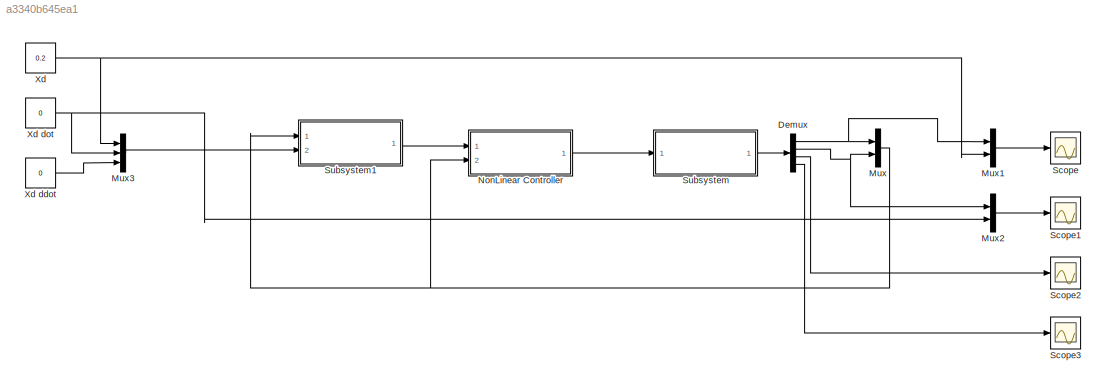
MODEL slx_a3340b645ea1
KIND model
CONFIG AbsTol = auto
CONFIG EnableMultiTasking = off
CONFIG FixedStep = auto
CONFIG MaxStep = auto
CONFIG MinStep = auto
CONFIG RelTol = 1e-3
CONFIG SampleTimeConstraint = Unconstrained
CONFIG Solver = VariableStepAuto
CONFIG SolverName = VariableStepAuto
CONFIG StartTime = 0.0
CONFIG StopTime = 10.0
BLOCK [Demux] Demux
  DisplayOption = bar
  Ports = [1, 4]
BLOCK [Mux] Mux
  DisplayOption = bar
  Inputs = 2
  Ports = [2, 1]
BLOCK [Mux] Mux1
  DisplayOption = bar
  Inputs = 2
  Ports = [2, 1]
BLOCK [Mux] Mux2
  DisplayOption = bar
  Inputs = 2
  Ports = [2, 1]
BLOCK [Mux] Mux3
  DisplayOption = bar
  Inputs = 3
  Ports = [3, 1]
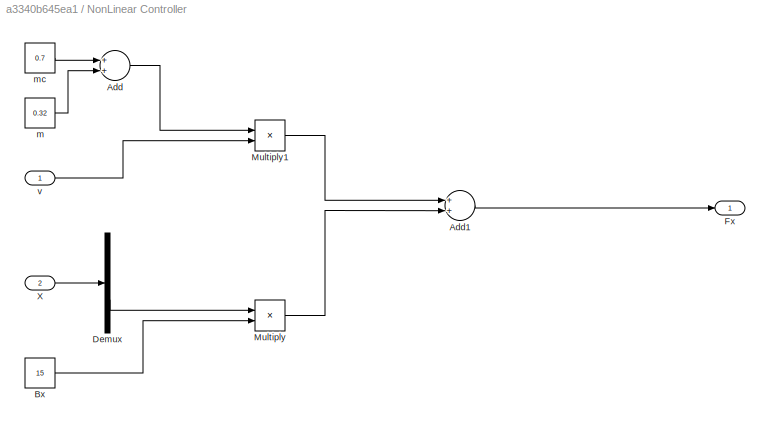
BLOCK [SubSystem] NonLinear Controller
  Ports = [2, 1]
  RequestExecContextInheritance = off
BLOCK [Sum] NonLinear Controller/Add
  InputSameDT = off
  OutDataTypeStr = Inherit: Inherit via internal rule
  Ports = [2, 1]
  SaturateOnIntegerOverflow = off
BLOCK [Sum] NonLinear Controller/Add1
  InputSameDT = off
  OutDataTypeStr = Inherit: Inherit via internal rule
  Ports = [2, 1]
  SaturateOnIntegerOverflow = off
BLOCK [Constant] NonLinear Controller/Bx
  Value = 15
BLOCK [Demux] NonLinear Controller/Demux
  DisplayOption = bar
  Outputs = 2
  Ports = [1, 2]
BLOCK [Outport] NonLinear Controller/Fx
  IconDisplay = Port number
BLOCK [Product] NonLinear Controller/Multiply
  InputSameDT = off
  OutDataTypeStr = Inherit: Inherit via internal rule
  Ports = [2, 1]
  RndMeth = Floor
  SaturateOnIntegerOverflow = off
BLOCK [Product] NonLinear Controller/Multiply1
  InputSameDT = off
  OutDataTypeStr = Inherit: Inherit via internal rule
  Ports = [2, 1]
  RndMeth = Floor
  SaturateOnIntegerOverflow = off
BLOCK [Inport] NonLinear Controller/X
  IconDisplay = Port number
  Port = 2
BLOCK [Constant] NonLinear Controller/m
  Value = 0.32
BLOCK [Constant] NonLinear Controller/mc
  Value = 0.7
BLOCK [Inport] NonLinear Controller/v
  IconDisplay = Port number
BLOCK [Scope] Scope
  Floating = off
  NumInputPorts = 1
  Ports = [1]
  ScopeSpecificationString = Simulink.scopes.TimeScopeBlockCfg('CurrentConfiguration', extmgr.ConfigurationSet(extmgr.Configuration('Core','General UI',true),extmgr.Configuration('Core','Source UI',true),extmgr.Configuration('Sources','WiredSimulink',true),extmgr.Configuration('Visuals','Time Domain',true),extmgr.Configuration('Tools','Plot Navigation',true),extmgr.Configuration('Tools','Measurements',true)),'Version','2018a'...<+1ch>
BLOCK [Scope] Scope1
  Floating = off
  NumInputPorts = 1
  Ports = [1]
  ScopeSpecificationString = Simulink.scopes.TimeScopeBlockCfg('CurrentConfiguration', extmgr.ConfigurationSet(extmgr.Configuration('Core','General UI',true),extmgr.Configuration('Core','Source UI',true),extmgr.Configuration('Sources','WiredSimulink',true,'DataLoggingVariableName','ScopeData1'),extmgr.Configuration('Visuals','Time Domain',true),extmgr.Configuration('Tools','Plot Navigation',true),extmgr.Configuration('Tools',...<+40ch>
BLOCK [Scope] Scope2
  Floating = off
  NumInputPorts = 1
  Ports = [1]
  ScopeSpecificationString = Simulink.scopes.TimeScopeBlockCfg('CurrentConfiguration', extmgr.ConfigurationSet(extmgr.Configuration('Core','General UI',true),extmgr.Configuration('Core','Source UI',true),extmgr.Configuration('Sources','WiredSimulink',true,'DataLoggingVariableName','ScopeData2'),extmgr.Configuration('Visuals','Time Domain',true),extmgr.Configuration('Tools','Plot Navigation',true),extmgr.Configuration('Tools',...<+40ch>
BLOCK [Scope] Scope3
  Floating = off
  NumInputPorts = 1
  Ports = [1]
  ScopeSpecificationString = Simulink.scopes.TimeScopeBlockCfg('CurrentConfiguration', extmgr.ConfigurationSet(extmgr.Configuration('Core','General UI',true),extmgr.Configuration('Core','Source UI',true),extmgr.Configuration('Sources','WiredSimulink',true,'DataLoggingVariableName','ScopeData3'),extmgr.Configuration('Visuals','Time Domain',true),extmgr.Configuration('Tools','Plot Navigation',true),extmgr.Configuration('Tools',...<+40ch>
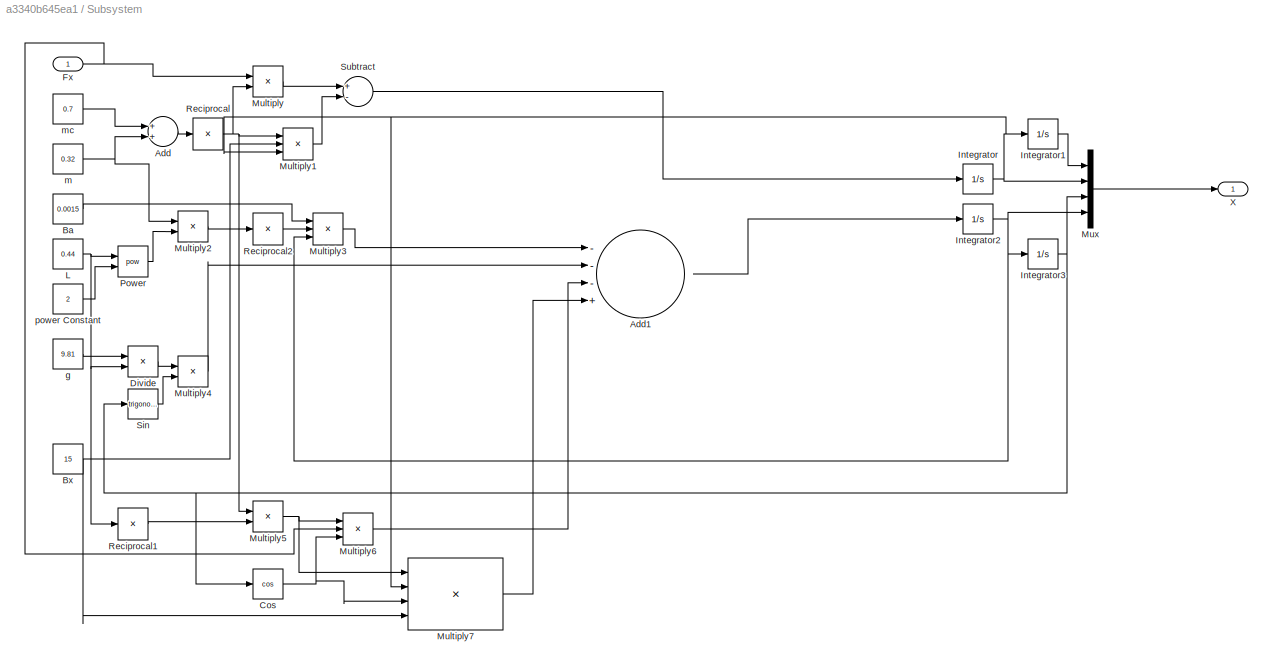
BLOCK [SubSystem] Subsystem
  Ports = [1, 1]
  RequestExecContextInheritance = off
BLOCK [Sum] Subsystem/Add
  InputSameDT = off
  OutDataTypeStr = Inherit: Inherit via internal rule
  Ports = [2, 1]
  SaturateOnIntegerOverflow = off
BLOCK [Sum] Subsystem/Add1
  InputSameDT = off
  Inputs = ---+
  OutDataTypeStr = Inherit: Inherit via internal rule
  Ports = [4, 1]
  SaturateOnIntegerOverflow = off
BLOCK [Constant] Subsystem/Ba
  Value = 0.0015
BLOCK [Constant] Subsystem/Bx
  Value = 15
BLOCK [Trigonometry] Subsystem/Cos
  Operator = cos
  Ports = [1, 1]
BLOCK [Product] Subsystem/Divide
  InputSameDT = off
  Inputs = */
  OutDataTypeStr = Inherit: Inherit via internal rule
  Ports = [2, 1]
  RndMeth = Floor
  SaturateOnIntegerOverflow = off
BLOCK [Inport] Subsystem/Fx
  IconDisplay = Port number
BLOCK [Integrator] Subsystem/Integrator
  Ports = [1, 1]
BLOCK [Integrator] Subsystem/Integrator1
  Ports = [1, 1]
BLOCK [Integrator] Subsystem/Integrator2
  Ports = [1, 1]
BLOCK [Integrator] Subsystem/Integrator3
  Ports = [1, 1]
BLOCK [Constant] Subsystem/L
  Value = 0.44
BLOCK [Product] Subsystem/Multiply
  InputSameDT = off
  OutDataTypeStr = Inherit: Inherit via internal rule
  Ports = [2, 1]
  RndMeth = Floor
  SaturateOnIntegerOverflow = off
BLOCK [Product] Subsystem/Multiply1
  InputSameDT = off
  Inputs = 3
  OutDataTypeStr = Inherit: Inherit via internal rule
  Ports = [3, 1]
  RndMeth = Floor
  SaturateOnIntegerOverflow = off
BLOCK [Product] Subsystem/Multiply2
  InputSameDT = off
  OutDataTypeStr = Inherit: Inherit via internal rule
  Ports = [2, 1]
  RndMeth = Floor
  SaturateOnIntegerOverflow = off
BLOCK [Product] Subsystem/Multiply3
  InputSameDT = off
  Inputs = 3
  OutDataTypeStr = Inherit: Inherit via internal rule
  Ports = [3, 1]
  RndMeth = Floor
  SaturateOnIntegerOverflow = off
BLOCK [Product] Subsystem/Multiply4
  InputSameDT = off
  OutDataTypeStr = Inherit: Inherit via internal rule
  Ports = [2, 1]
  RndMeth = Floor
  SaturateOnIntegerOverflow = off
BLOCK [Product] Subsystem/Multiply5
  InputSameDT = off
  OutDataTypeStr = Inherit: Inherit via internal rule
  Ports = [2, 1]
  RndMeth = Floor
  SaturateOnIntegerOverflow = off
BLOCK [Product] Subsystem/Multiply6
  InputSameDT = off
  Inputs = 3
  OutDataTypeStr = Inherit: Inherit via internal rule
  Ports = [3, 1]
  RndMeth = Floor
  SaturateOnIntegerOverflow = off
BLOCK [Product] Subsystem/Multiply7
  InputSameDT = off
  Inputs = 4
  OutDataTypeStr = Inherit: Inherit via internal rule
  Ports = [4, 1]
  RndMeth = Floor
  SaturateOnIntegerOverflow = off
BLOCK [Mux] Subsystem/Mux
  DisplayOption = bar
  Ports = [4, 1]
BLOCK [Math] Subsystem/Power
  Operator = pow
  Ports = [2, 1]
BLOCK [Product] Subsystem/Reciprocal
  InputSameDT = off
  Inputs = /
  OutDataTypeStr = Inherit: Inherit via internal rule
  Ports = [1, 1]
  RndMeth = Floor
  SaturateOnIntegerOverflow = off
BLOCK [Product] Subsystem/Reciprocal1
  InputSameDT = off
  Inputs = /
  OutDataTypeStr = Inherit: Inherit via internal rule
  Ports = [1, 1]
  RndMeth = Floor
  SaturateOnIntegerOverflow = off
BLOCK [Product] Subsystem/Reciprocal2
  InputSameDT = off
  Inputs = /
  OutDataTypeStr = Inherit: Inherit via internal rule
  Ports = [1, 1]
  RndMeth = Floor
  SaturateOnIntegerOverflow = off
BLOCK [Trigonometry] Subsystem/Sin
  Ports = [1, 1]
BLOCK [Sum] Subsystem/Subtract
  InputSameDT = off
  Inputs = +-
  OutDataTypeStr = Inherit: Inherit via internal rule
  Ports = [2, 1]
  SaturateOnIntegerOverflow = off
BLOCK [Outport] Subsystem/X
  IconDisplay = Port number
BLOCK [Constant] Subsystem/g
  Value = 9.81
BLOCK [Constant] Subsystem/m
  Value = 0.32
BLOCK [Constant] Subsystem/mc
  Value = 0.7
BLOCK [Constant] Subsystem/power Constant
  Value = 2
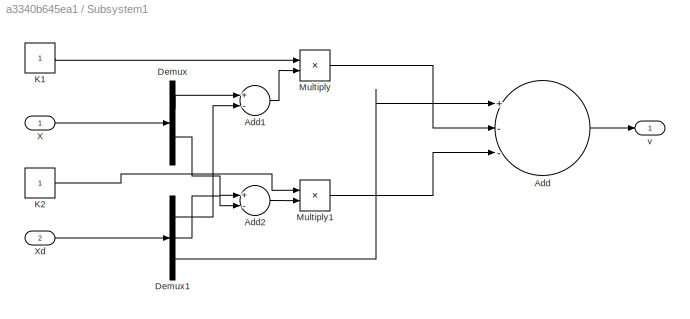
BLOCK [SubSystem] Subsystem1
  Ports = [2, 1]
  RequestExecContextInheritance = off
BLOCK [Sum] Subsystem1/Add
  InputSameDT = off
  Inputs = +--
  OutDataTypeStr = Inherit: Inherit via internal rule
  Ports = [3, 1]
  SaturateOnIntegerOverflow = off
BLOCK [Sum] Subsystem1/Add1
  InputSameDT = off
  Inputs = +-
  OutDataTypeStr = Inherit: Inherit via internal rule
  Ports = [2, 1]
  SaturateOnIntegerOverflow = off
BLOCK [Sum] Subsystem1/Add2
  InputSameDT = off
  Inputs = +-
  OutDataTypeStr = Inherit: Inherit via internal rule
  Ports = [2, 1]
  SaturateOnIntegerOverflow = off
BLOCK [Demux] Subsystem1/Demux
  DisplayOption = bar
  Outputs = 2
  Ports = [1, 2]
BLOCK [Demux] Subsystem1/Demux1
  DisplayOption = bar
  Outputs = 3
  Ports = [1, 3]
BLOCK [Constant] Subsystem1/K1
BLOCK [Constant] Subsystem1/K2
BLOCK [Product] Subsystem1/Multiply
  InputSameDT = off
  OutDataTypeStr = Inherit: Inherit via internal rule
  Ports = [2, 1]
  RndMeth = Floor
  SaturateOnIntegerOverflow = off
BLOCK [Product] Subsystem1/Multiply1
  InputSameDT = off
  OutDataTypeStr = Inherit: Inherit via internal rule
  Ports = [2, 1]
  RndMeth = Floor
  SaturateOnIntegerOverflow = off
BLOCK [Inport] Subsystem1/X
  IconDisplay = Port number
BLOCK [Inport] Subsystem1/Xd
  IconDisplay = Port number
  Port = 2
BLOCK [Outport] Subsystem1/v
  IconDisplay = Port number
BLOCK [Constant] Xd
  Value = 0.2
BLOCK [Constant] Xd ddot
  Value = 0
BLOCK [Constant] Xd dot
  Value = 0
NET Demux:1 -> Mux1:1, Mux:1
NET Demux:2 -> Mux2:1, Mux:2
LINE Demux:3 -> Scope2:1
LINE Demux:4 -> Scope3:1
LINE Mux1:1 -> Scope:1
LINE Mux2:1 -> Scope1:1
LINE Mux3:1 -> Subsystem1:2
NET Mux:1 -> NonLinear Controller:2, Subsystem1:1
LINE NonLinear Controller/Add1:1 -> NonLinear Controller/Fx:1
LINE NonLinear Controller/Add:1 -> NonLinear Controller/Multiply1:1
LINE NonLinear Controller/Bx:1 -> NonLinear Controller/Multiply:2
LINE NonLinear Controller/Demux:2 -> NonLinear Controller/Multiply:1
LINE NonLinear Controller/Multiply1:1 -> NonLinear Controller/Add1:1
LINE NonLinear Controller/Multiply:1 -> NonLinear Controller/Add1:2
LINE NonLinear Controller/X:1 -> NonLinear Controller/Demux:1
LINE NonLinear Controller/m:1 -> NonLinear Controller/Add:2
LINE NonLinear Controller/mc:1 -> NonLinear Controller/Add:1
LINE NonLinear Controller/v:1 -> NonLinear Controller/Multiply1:2
LINE NonLinear Controller:1 -> Subsystem:1
LINE Subsystem/Add1:1 -> Subsystem/Integrator2:1
LINE Subsystem/Add:1 -> Subsystem/Reciprocal:1
LINE Subsystem/Ba:1 -> Subsystem/Multiply3:1
NET Subsystem/Bx:1 -> Subsystem/Multiply1:2, Subsystem/Multiply7:4
NET Subsystem/Cos:1 -> Subsystem/Multiply6:3, Subsystem/Multiply7:3
LINE Subsystem/Divide:1 -> Subsystem/Multiply4:1
NET Subsystem/Fx:1 -> Subsystem/Multiply6:2, Subsystem/Multiply:1
LINE Subsystem/Integrator1:1 -> Subsystem/Mux:1
NET Subsystem/Integrator2:1 -> Subsystem/Integrator3:1, Subsystem/Multiply3:3, Subsystem/Mux:4
NET Subsystem/Integrator3:1 -> Subsystem/Cos:1, Subsystem/Mux:3, Subsystem/Sin:1
NET Subsystem/Integrator:1 -> Subsystem/Integrator1:1, Subsystem/Multiply1:3, Subsystem/Multiply7:2, Subsystem/Mux:2
NET Subsystem/L:1 -> Subsystem/Divide:2, Subsystem/Power:1, Subsystem/Reciprocal1:1
LINE Subsystem/Multiply1:1 -> Subsystem/Subtract:2
LINE Subsystem/Multiply2:1 -> Subsystem/Reciprocal2:1
LINE Subsystem/Multiply3:1 -> Subsystem/Add1:1
LINE Subsystem/Multiply4:1 -> Subsystem/Add1:2
NET Subsystem/Multiply5:1 -> Subsystem/Multiply6:1, Subsystem/Multiply7:1
LINE Subsystem/Multiply6:1 -> Subsystem/Add1:3
LINE Subsystem/Multiply7:1 -> Subsystem/Add1:4
LINE Subsystem/Multiply:1 -> Subsystem/Subtract:1
LINE Subsystem/Mux:1 -> Subsystem/X:1
LINE Subsystem/Power:1 -> Subsystem/Multiply2:2
LINE Subsystem/Reciprocal1:1 -> Subsystem/Multiply5:2
LINE Subsystem/Reciprocal2:1 -> Subsystem/Multiply3:2
NET Subsystem/Reciprocal:1 -> Subsystem/Multiply1:1, Subsystem/Multiply5:1, Subsystem/Multiply:2
LINE Subsystem/Sin:1 -> Subsystem/Multiply4:2
LINE Subsystem/Subtract:1 -> Subsystem/Integrator:1
LINE Subsystem/g:1 -> Subsystem/Divide:1
NET Subsystem/m:1 -> Subsystem/Add:2, Subsystem/Multiply2:1
LINE Subsystem/mc:1 -> Subsystem/Add:1
LINE Subsystem/power Constant:1 -> Subsystem/Power:2
LINE Subsystem1/Add1:1 -> Subsystem1/Multiply:2
LINE Subsystem1/Add2:1 -> Subsystem1/Multiply1:2
LINE Subsystem1/Add:1 -> Subsystem1/v:1
LINE Subsystem1/Demux1:1 -> Subsystem1/Add1:2
LINE Subsystem1/Demux1:2 -> Subsystem1/Add2:2
LINE Subsystem1/Demux1:3 -> Subsystem1/Add:1
LINE Subsystem1/Demux:1 -> Subsystem1/Add1:1
LINE Subsystem1/Demux:2 -> Subsystem1/Add2:1
LINE Subsystem1/K1:1 -> Subsystem1/Multiply:1
LINE Subsystem1/K2:1 -> Subsystem1/Multiply1:1
LINE Subsystem1/Multiply1:1 -> Subsystem1/Add:3
LINE Subsystem1/Multiply:1 -> Subsystem1/Add:2
LINE Subsystem1/X:1 -> Subsystem1/Demux:1
LINE Subsystem1/Xd:1 -> Subsystem1/Demux1:1
LINE Subsystem1:1 -> NonLinear Controller:1
LINE Subsystem:1 -> Demux:1
LINE Xd ddot:1 -> Mux3:3
NET Xd dot:1 -> Mux2:2, Mux3:2
NET Xd:1 -> Mux1:2, Mux3:1
note: NET lines group one-source signal fan-out (src -> all destinations, sorted); 1:1 wires keep LINE
